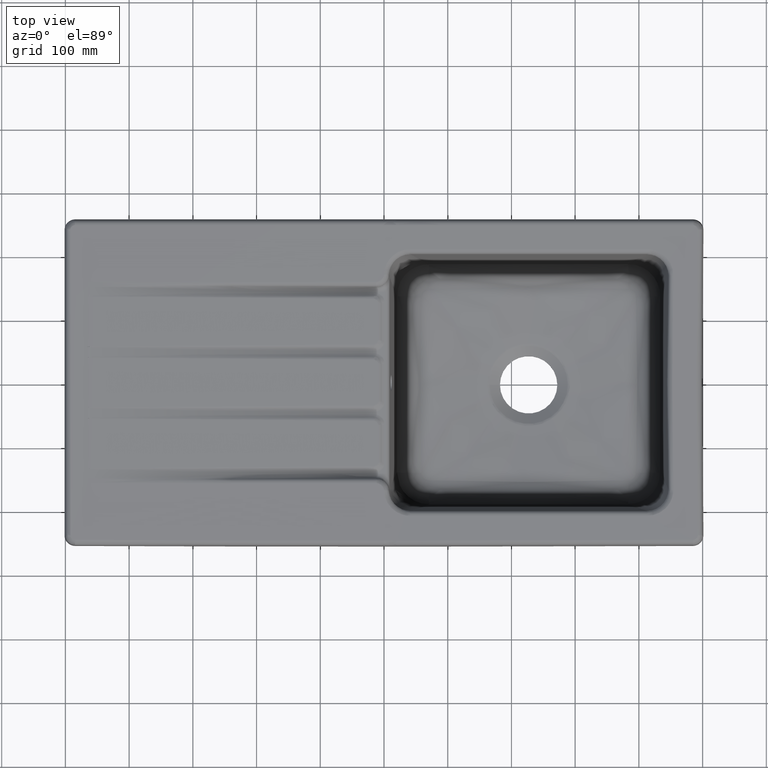
[diagram: clean part render]
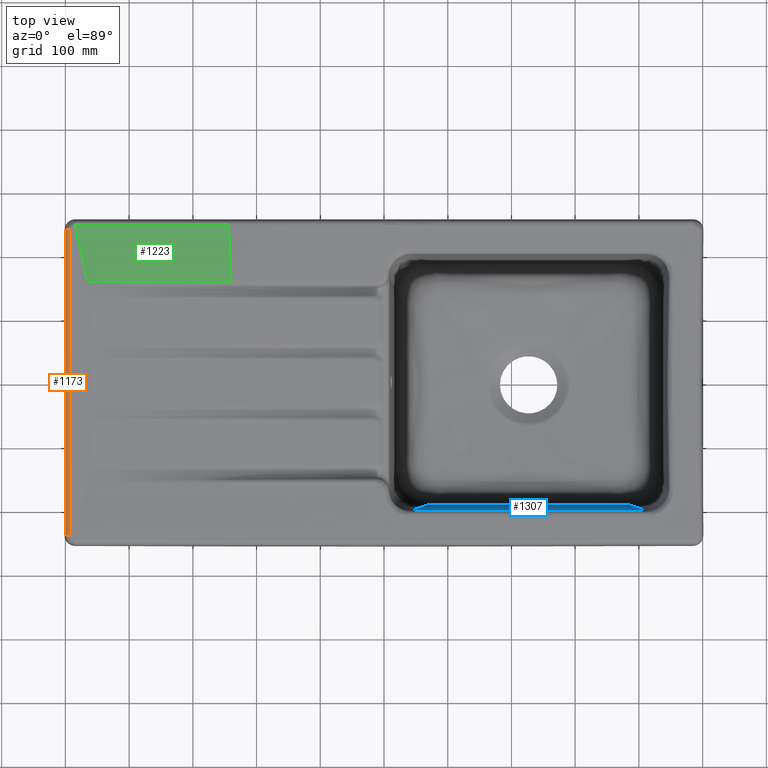
[diagram: same view with three faces highlighted in distinct colors, each labeled with its STEP entity id]
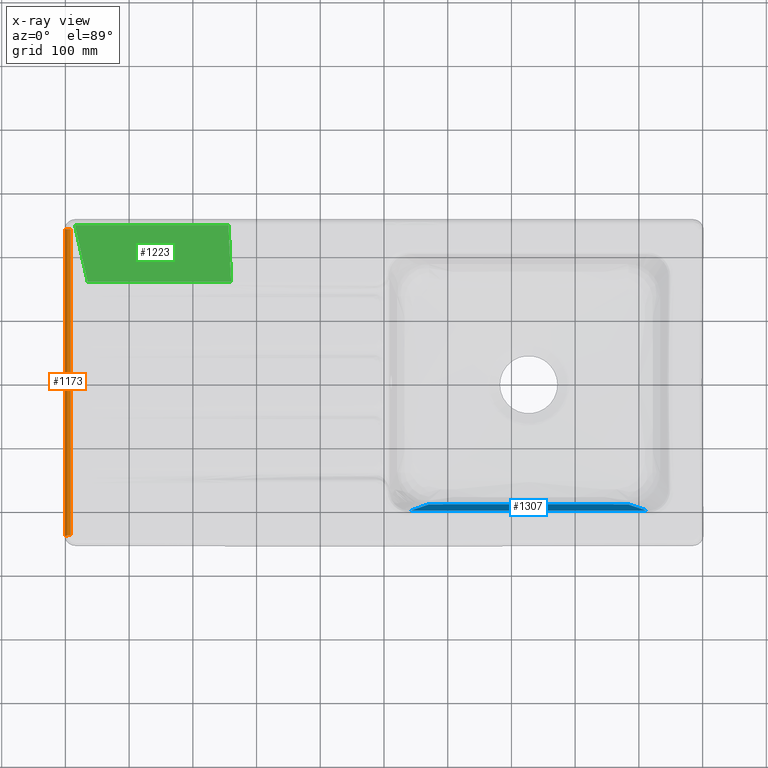
[diagram: x-ray of the same camera — body ghosted, the three highlighted faces saturated]
A machine part, top view with three faces highlighted in distinct colors.
The next image is the same camera in x-ray (body ghosted, the three faces saturated) — at least one of them is partly hidden behind the body in this view.
Their STEP definitions:

[orange] entity #1173 — the highlighted face is a freeform B-spline surface patch.
#108=(
BOUNDED_SURFACE()
B_SPLINE_SURFACE(2,3,((#10920,#10921,#10922,#10923,#10924,#10925,#10926,
#10927,#10928,#10929,#10930,#10931,#10932,#10933,#10934,#10935,#10936),
(#10937,#10938,#10939,#10940,#10941,#10942,#10943,#10944,#10945,#10946,
#10947,#10948,#10949,#10950,#10951,#10952,#10953),(#10954,#10955,#10956,
#10957,#10958,#10959,#10960,#10961,#10962,#10963,#10964,#10965,#10966,#10967,
#10968,#10969,#10970)),.UNSPECIFIED.,.F.,.F.,.F.)
B_SPLINE_SURFACE_WITH_KNOTS((3,3),(4,1,1,1,1,1,1,1,1,1,1,1,1,1,4),(0.,1.),
(0.,0.00160216019844753,0.00977261658688623,0.0424544421406404,0.107818093248149,
0.238545395463167,0.369272697678184,0.499999999893201,0.630727302108218,
0.761454604323236,0.892181906538253,0.957545557645762,0.990227383199516,
0.998397839587954,1.),.UNSPECIFIED.)
GEOMETRIC_REPRESENTATION_ITEM()
RATIONAL_B_SPLINE_SURFACE(((1.,1.,1.,1.,1.,1.,1.,1.,1.,1.,1.,1.,1.,1.,1.,
1.,1.),(0.743144825477059,0.743144825477059,0.743144825477059,0.743144825477059,
0.743144825477059,0.743144825477059,0.743144825477059,0.743144825477059,
0.743144825477059,0.743144825477059,0.743144825477059,0.743144825477059,
0.743144825477059,0.743144825477059,0.743144825477059,0.743144825477059,
0.743144825477059),(1.,1.,1.,1.,1.,1.,1.,1.,1.,1.,1.,1.,1.,1.,1.,1.,1.)))
REPRESENTATION_ITEM('')
SURFACE()
);
#555=CIRCLE('',#6814,8.00817599999979);
#556=CIRCLE('',#6815,8.00817600000002);
#1173=ADVANCED_FACE('',(#1704),#108,.F.);
#1704=FACE_OUTER_BOUND('',#2146,.T.);
#2146=EDGE_LOOP('',(#2793,#2794,#2795,#2796));
#2793=ORIENTED_EDGE('',*,*,#5392,.T.);
#2794=ORIENTED_EDGE('',*,*,#5272,.T.);
#2795=ORIENTED_EDGE('',*,*,#5394,.F.);
#2796=ORIENTED_EDGE('',*,*,#5395,.F.);
#4673=VERTEX_POINT('',#9586);
#4675=VERTEX_POINT('',#9624);
#4756=VERTEX_POINT('',#10872);
#4757=VERTEX_POINT('',#10902);
#5272=EDGE_CURVE('',#4675,#4673,#6291,.T.);
#5392=EDGE_CURVE('',#4756,#4675,#555,.T.);
#5394=EDGE_CURVE('',#4757,#4673,#556,.T.);
#5395=EDGE_CURVE('',#4756,#4757,#6356,.T.);
#6291=B_SPLINE_CURVE_WITH_KNOTS('',3,(#9642,#9643,#9644,#9645,#9646,#9647,
#9648,#9649,#9650,#9651,#9652,#9653,#9654,#9655,#9656,#9657,#9658),
 .UNSPECIFIED.,.F.,.F.,(4,1,1,1,1,1,1,1,1,1,1,1,1,1,4),(0.,0.00160216019844753,
0.00977261658688623,0.0424544421406404,0.107818093248149,0.238545395463167,
0.369272697678184,0.499999999893201,0.630727302108218,0.761454604323236,
0.892181906538253,0.957545557645762,0.990227383199516,0.998397839587954,
1.),.UNSPECIFIED.);
#6356=B_SPLINE_CURVE_WITH_KNOTS('',3,(#10903,#10904,#10905,#10906,#10907,
#10908,#10909,#10910,#10911,#10912,#10913,#10914,#10915,#10916,#10917,#10918,
#10919),.UNSPECIFIED.,.F.,.F.,(4,1,1,1,1,1,1,1,1,1,1,1,1,1,4),(0.,0.00160216019841838,
0.00977261658685745,0.0424544421406137,0.107818093248126,0.238545395463151,
0.369272697678176,0.499999999893201,0.630727302108226,0.761454604323252,
0.892181906538277,0.957545557645789,0.990227383199545,0.998397839587984,
1.),.UNSPECIFIED.);
#6814=AXIS2_PLACEMENT_3D('',#10871,#7316,#7317);
#6815=AXIS2_PLACEMENT_3D('',#10901,#7318,#7319);
#7316=DIRECTION('',(-0.022962364639938,-0.999736330144175,-4.63534793305253E-15));
#7317=DIRECTION('',(0.999736330144173,-0.0229623646399367,0.));
#7318=DIRECTION('',(0.0229624005290624,-0.999736329319858,3.50709759131329E-15));
#7319=DIRECTION('',(0.999736329319855,0.0229624005290614,0.));
#9586=CARTESIAN_POINT('',(-499.956049081241,-240.182738168329,-6.67153046231897));
#9624=CARTESIAN_POINT('',(-499.956049117871,240.182737883409,-6.67153046231899));
#9642=CARTESIAN_POINT('',(-499.956049117871,240.182737883409,-6.67153046231894));
#9643=CARTESIAN_POINT('',(-499.964143957086,239.830304456955,-6.67153046231894));
#9644=CARTESIAN_POINT('',(-499.962298082925,238.172559966568,-6.67153046231894));
#9645=CARTESIAN_POINT('',(-499.967396900279,231.392490705848,-6.67153046231894));
#9646=CARTESIAN_POINT('',(-499.961842265716,214.385278786583,-6.67153046231894));
#9647=CARTESIAN_POINT('',(-499.965956066208,177.790736822504,-6.67153046231894));
#9648=CARTESIAN_POINT('',(-499.963761953997,125.495847935144,-6.67153046231894));
#9649=CARTESIAN_POINT('',(-499.964310476259,62.7485325938123,-6.67153046231894));
#9650=CARTESIAN_POINT('',(-499.964310476259,4.82489213027293E-8,-6.67153046231894));
#9651=CARTESIAN_POINT('',(-499.964310476259,-62.7485324967693,-6.67153046231894));
#9652=CARTESIAN_POINT('',(-499.963761962587,-125.495847842994,-6.67153046231894));
#9653=CARTESIAN_POINT('',(-499.965956040437,-177.790736714781,-6.67153046231894));
#9654=CARTESIAN_POINT('',(-499.961842304366,-214.385278713687,-6.67153046231894));
#9655=CARTESIAN_POINT('',(-499.96739685193,-231.392490570001,-6.67153046231894));
#9656=CARTESIAN_POINT('',(-499.962298114314,-238.172559996826,-6.67153046231894));
#9657=CARTESIAN_POINT('',(-499.964143934105,-239.830304698717,-6.67153046231894));
#9658=CARTESIAN_POINT('',(-499.956049081241,-240.182738168329,-6.67153046231894));
#10871=CARTESIAN_POINT('',(-491.993842742607,239.999858577522,-7.50861328030383));
#10872=CARTESIAN_POINT('',(-491.993840117298,239.999858517223,0.499781358511798));
#10901=CARTESIAN_POINT('',(-491.993842712542,-239.99985857661,-7.50861328030395));
#10902=CARTESIAN_POINT('',(-491.993840086762,-239.999858516301,0.499781358513879));
#10903=CARTESIAN_POINT('',(-491.993838590212,239.999858482149,0.500000000000088));
#10904=CARTESIAN_POINT('',(-491.999731650023,239.743286213536,0.500000000000088));
#10905=CARTESIAN_POINT('',(-491.997984272115,238.173999336044,0.500000000000088));
#10906=CARTESIAN_POINT('',(-492.003085445942,231.39079659528,0.500000000000088));
#10907=CARTESIAN_POINT('',(-491.997531643255,214.386131720297,0.500000000000088));
#10908=CARTESIAN_POINT('',(-492.001645571172,177.790456243236,0.500000000000088));
#10909=CARTESIAN_POINT('',(-491.999451476283,125.495980201514,0.500000000000088));
#10910=CARTESIAN_POINT('',(-492.000000000005,62.7484977827526,0.500000000000088));
#10911=CARTESIAN_POINT('',(-492.000000000005,4.82489177500241E-8,0.500000000000088));
#10912=CARTESIAN_POINT('',(-492.000000000005,-62.7484976862548,0.500000000000088));
#10913=CARTESIAN_POINT('',(-491.999451484872,-125.495980107293,0.500000000000088));
#10914=CARTESIAN_POINT('',(-492.001645545402,-177.790456139907,0.500000000000088));
#10915=CARTESIAN_POINT('',(-491.99753168191,-214.386131634047,0.500000000000088));
#10916=CARTESIAN_POINT('',(-492.003085397624,-231.390796485974,0.500000000000088));
#10917=CARTESIAN_POINT('',(-491.997984303656,-238.173999282037,0.500000000000088));
#10918=CARTESIAN_POINT('',(-491.999731629896,-239.743286181169,0.500000000000088));
#10919=CARTESIAN_POINT('',(-491.993838560147,-239.999858481237,0.500000000000088));
#10920=CARTESIAN_POINT('',(-499.956049117871,240.182737883409,-6.67153046231894));
#10921=CARTESIAN_POINT('',(-499.964143957086,239.830304456955,-6.67153046231894));
#10922=CARTESIAN_POINT('',(-499.962298082925,238.172559966568,-6.67153046231894));
#10923=CARTESIAN_POINT('',(-499.967396900279,231.392490705848,-6.67153046231894));
#10924=CARTESIAN_POINT('',(-499.961842265716,214.385278786583,-6.67153046231894));
#10925=CARTESIAN_POINT('',(-499.965956066208,177.790736822504,-6.67153046231894));
#10926=CARTESIAN_POINT('',(-499.963761953997,125.495847935144,-6.67153046231894));
#10927=CARTESIAN_POINT('',(-499.964310476259,62.7485325938123,-6.67153046231894));
#10928=CARTESIAN_POINT('',(-499.964310476259,4.82489213027293E-8,-6.67153046231894));
#10929=CARTESIAN_POINT('',(-499.964310476259,-62.7485324967693,-6.67153046231894));
#10930=CARTESIAN_POINT('',(-499.963761962587,-125.495847842994,-6.67153046231894));
#10931=CARTESIAN_POINT('',(-499.965956040437,-177.790736714781,-6.67153046231894));
#10932=CARTESIAN_POINT('',(-499.961842304366,-214.385278713687,-6.67153046231894));
#10933=CARTESIAN_POINT('',(-499.96739685193,-231.392490570001,-6.67153046231894));
#10934=CARTESIAN_POINT('',(-499.962298114314,-238.172559996826,-6.67153046231894));
#10935=CARTESIAN_POINT('',(-499.964143934105,-239.830304698717,-6.67153046231894));
#10936=CARTESIAN_POINT('',(-499.956049081241,-240.182738168329,-6.67153046231894));
#10937=CARTESIAN_POINT('',(-499.202535094478,240.165430856302,0.499563160731398));
#10938=CARTESIAN_POINT('',(-499.210421565469,239.822069373684,0.499563160731398));
#10939=CARTESIAN_POINT('',(-499.208585012628,238.172696183147,0.499563160731398));
#10940=CARTESIAN_POINT('',(-499.213684052991,231.392330381516,0.499563160731398));
#10941=CARTESIAN_POINT('',(-499.208129497152,214.38535950506,0.499563160731398));
#10942=CARTESIAN_POINT('',(-499.212243309703,177.790710269524,0.499563160731398));
#10943=CARTESIAN_POINT('',(-499.210049199132,125.495860452341,0.499563160731398));
#10944=CARTESIAN_POINT('',(-499.210597721532,62.7485292994225,0.499563160731398));
#10945=CARTESIAN_POINT('',(-499.210597721532,4.82489213027293E-8,0.499563160731398));
#10946=CARTESIAN_POINT('',(-499.210597721532,-62.7485292024312,0.499563160731398));
#10947=CARTESIAN_POINT('',(-499.210049207722,-125.495860359995,0.499563160731398));
#10948=CARTESIAN_POINT('',(-499.212243283933,-177.790710162216,0.499563160731398));
#10949=CARTESIAN_POINT('',(-499.208129535803,-214.3853594309,0.499563160731398));
#10950=CARTESIAN_POINT('',(-499.213684004644,-231.392330248181,0.499563160731398));
#10951=CARTESIAN_POINT('',(-499.208585044032,-238.172696205431,0.499563160731398));
#10952=CARTESIAN_POINT('',(-499.210421542759,-239.822069589504,0.499563160731398));
#10953=CARTESIAN_POINT('',(-499.202535058469,-240.165431114172,0.499563160731398));
#10954=CARTESIAN_POINT('',(-491.993842252917,239.999858566274,0.499562719695976));
#10955=CARTESIAN_POINT('',(-491.999735313741,239.743286253559,0.499562719695977));
#10956=CARTESIAN_POINT('',(-491.997987935788,238.173999335371,0.499562719695977));
#10957=CARTESIAN_POINT('',(-492.003089109614,231.390796596044,0.499562719695977));
#10958=CARTESIAN_POINT('',(-491.997535306926,214.386131719891,0.499562719695977));
#10959=CARTESIAN_POINT('',(-492.001649234842,177.790456243353,0.499562719695977));
#10960=CARTESIAN_POINT('',(-491.999455139954,125.495980201445,0.499562719695977));
#10961=CARTESIAN_POINT('',(-492.000003663676,62.7484977827645,0.499562719695977));
#10962=CARTESIAN_POINT('',(-492.000003663676,4.82489141973019E-8,0.499562719695977));
#10963=CARTESIAN_POINT('',(-492.000003663676,-62.7484976862667,0.499562719695977));
#10964=CARTESIAN_POINT('',(-491.999455148543,-125.495980107224,0.499562719695977));
#10965=CARTESIAN_POINT('',(-492.001649209073,-177.790456140024,0.499562719695977));
#10966=CARTESIAN_POINT('',(-491.997535345581,-214.38613163364,0.499562719695977));
#10967=CARTESIAN_POINT('',(-492.003089061295,-231.390796486738,0.499562719695977));
#10968=CARTESIAN_POINT('',(-491.997987967329,-238.173999281365,0.499562719695977));
#10969=CARTESIAN_POINT('',(-491.999735293614,-239.743286221192,0.499562719695977));
#10970=CARTESIAN_POINT('',(-491.993842222852,-239.999858565363,0.499562719695977));

[blue] entity #1307 — the highlighted planar face has unit normal (-0, -0.9962, -0.0872).
#387=PLANE('',#6919);
#831=LINE('',#12992,#999);
#999=VECTOR('',#7437,1.);
#1307=ADVANCED_FACE('',(#1836),#387,.F.);
#1836=FACE_OUTER_BOUND('',#2282,.T.);
#2282=EDGE_LOOP('',(#3343,#3344,#3345,#3346));
#3343=ORIENTED_EDGE('',*,*,#5535,.T.);
#3344=ORIENTED_EDGE('',*,*,#5541,.T.);
#3345=ORIENTED_EDGE('',*,*,#5666,.F.);
#3346=ORIENTED_EDGE('',*,*,#5537,.T.);
#4777=VERTEX_POINT('',#11295);
#4825=VERTEX_POINT('',#12957);
#4826=VERTEX_POINT('',#12991);
#4829=VERTEX_POINT('',#13062);
#5535=EDGE_CURVE('',#4777,#4825,#6436,.T.);
#5537=EDGE_CURVE('',#4826,#4777,#831,.T.);
#5541=EDGE_CURVE('',#4825,#4829,#6440,.T.);
#5666=EDGE_CURVE('',#4826,#4829,#6502,.T.);
#6436=B_SPLINE_CURVE_WITH_KNOTS('',3,(#12958,#12959,#12960,#12961,#12962,
#12963,#12964,#12965),.UNSPECIFIED.,.F.,.F.,(4,2,2,4),(0.,0.151517593064763,
0.852907961603614,1.),.UNSPECIFIED.);
#6440=B_SPLINE_CURVE_WITH_KNOTS('',3,(#13063,#13064,#13065,#13066,#13067,
#13068,#13069,#13070,#13071,#13072,#13073,#13074,#13075,#13076,#13077,#13078,
#13079,#13080,#13081,#13082,#13083,#13084,#13085,#13086,#13087,#13088,#13089,
#13090,#13091,#13092,#13093,#13094,#13095,#13096,#13097,#13098,#13099,#13100,
#13101,#13102,#13103,#13104,#13105,#13106,#13107,#13108,#13109,#13110,#13111,
#13112,#13113,#13114,#13115,#13116,#13117,#13118,#13119,#13120,#13121,#13122,
#13123,#13124,#13125,#13126,#13127,#13128,#13129,#13130,#13131,#13132,#13133,
#13134,#13135,#13136,#13137,#13138,#13139,#13140,#13141,#13142,#13143,#13144,
#13145,#13146,#13147,#13148,#13149,#13150,#13151,#13152,#13153,#13154,#13155,
#13156,#13157,#13158,#13159,#13160,#13161,#13162,#13163,#13164,#13165,#13166,
#13167,#13168,#13169,#13170,#13171,#13172,#13173,#13174,#13175,#13176,#13177,
#13178,#13179,#13180,#13181,#13182,#13183,#13184,#13185,#13186,#13187,#13188,
#13189,#13190,#13191,#13192),.UNSPECIFIED.,.F.,.F.,(4,1,1,2,2,1,1,1,2,2,
1,1,1,1,2,2,1,1,1,2,2,1,1,1,1,2,2,1,1,2,2,1,1,1,2,2,1,1,2,2,1,1,2,2,1,1,
2,2,1,1,1,2,2,1,1,1,1,2,2,1,1,1,1,2,2,1,1,1,1,2,2,1,1,1,1,2,2,1,1,1,2,2,
1,1,2,2,1,1,1,2,2,4),(0.,0.0156250000000011,0.0234375000000013,0.0273437500000015,
0.0312500000000016,0.0468750000000004,0.0546874999999998,0.0585937499999995,
0.0605468749999991,0.0624999999999987,0.0781249999999949,0.0859374999999927,
0.0898437499999916,0.0917968749999913,0.092773437499991,0.0937499999999905,
0.109374999999984,0.117187499999982,0.12109374999998,0.123046874999979,
0.124999999999979,0.187499999999965,0.218749999999957,0.234374999999954,
0.242187499999952,0.246093749999951,0.249999999999951,0.281249999999948,
0.296874999999946,0.304687499999945,0.312499999999944,0.343749999999939,
0.359374999999936,0.367187499999935,0.371093749999935,0.374999999999934,
0.437499999999932,0.468749999999931,0.484374999999931,0.499999999999931,
0.53124999999993,0.546874999999929,0.554687499999929,0.562499999999929,
0.593749999999928,0.609374999999928,0.617187499999927,0.624999999999927,
0.656249999999926,0.671874999999926,0.679687499999925,0.683593749999925,
0.687499999999925,0.718749999999925,0.734374999999924,0.742187499999924,
0.746093749999924,0.748046874999924,0.749999999999924,0.757812499999923,
0.761718749999923,0.763671874999923,0.764648437499923,0.765136718749923,
0.765624999999923,0.773437499999924,0.777343749999924,0.779296874999924,
0.780273437499924,0.780761718749925,0.781249999999925,0.79687499999993,
0.804687499999933,0.808593749999934,0.810546874999935,0.811523437499935,
0.812499999999935,0.82812499999994,0.835937499999943,0.839843749999944,
0.841796874999945,0.843749999999946,0.859374999999951,0.867187499999953,
0.871093749999955,0.874999999999956,0.906249999999967,0.921874999999972,
0.929687499999975,0.933593749999976,0.937499999999978,1.),.UNSPECIFIED.);
#6502=B_SPLINE_CURVE_WITH_KNOTS('',3,(#16265,#16266,#16267,#16268,#16269,
#16270,#16271,#16272),.UNSPECIFIED.,.F.,.F.,(4,2,2,4),(0.,0.151517593064763,
0.852907961603614,1.),.UNSPECIFIED.);
#6919=AXIS2_PLACEMENT_3D('',#16273,#7560,#7561);
#7437=DIRECTION('',(1.,-6.30808536718839E-17,3.06836990813488E-34));
#7560=DIRECTION('',(-6.2840811979032E-17,-0.996194698091746,-0.0871557427476584));
#7561=DIRECTION('',(0.,0.0871557427476584,-0.996194698091746));
#11295=CARTESIAN_POINT('',(412.642079819299,-201.361091807406,-7.30275405801779));
#12957=CARTESIAN_POINT('',(383.032417858623,-188.608872369877,-153.061289205255));
#12958=CARTESIAN_POINT('',(422.441526187146,-205.58149427654,40.9366669028934));
#12959=CARTESIAN_POINT('',(419.669542445754,-204.387662851027,27.2911112685956));
#12960=CARTESIAN_POINT('',(416.897558704364,-203.193831425514,13.6455556342978));
#12961=CARTESIAN_POINT('',(401.293779930912,-196.473632753946,-63.1666666666667));
#12962=CARTESIAN_POINT('',(388.461984898851,-190.947265507891,-126.333333333333));
#12963=CARTESIAN_POINT('',(372.939170753594,-184.2619364916,-202.746993650713));
#12964=CARTESIAN_POINT('',(370.248151640397,-183.102974721363,-215.993987301425));
#12965=CARTESIAN_POINT('',(367.5571325272,-181.944012951126,-229.240980952138));
#12991=CARTESIAN_POINT('',(41.3579201807008,-201.361091807406,-7.30275405801879));
#12992=CARTESIAN_POINT('',(39.8744250370272,-201.361091807406,-7.30275405801873));
#13062=CARTESIAN_POINT('',(70.9679940952255,-188.608694950564,-153.06331711728));
#13063=CARTESIAN_POINT('',(383.032417858622,-188.608872369877,-153.061289205255));
#13064=CARTESIAN_POINT('',(381.485405720849,-188.605591486091,-153.098789878536));
#13065=CARTESIAN_POINT('',(379.106294222161,-188.600765701805,-153.153948845322));
#13066=CARTESIAN_POINT('',(376.228125879307,-188.595302817579,-153.216389897751));
#13067=CARTESIAN_POINT('',(374.97265267643,-188.592997409505,-153.242740832616));
#13068=CARTESIAN_POINT('',(374.130787766843,-188.591468432572,-153.260217118932));
#13069=CARTESIAN_POINT('',(373.660456720279,-188.590624498252,-153.269863332344));
#13070=CARTESIAN_POINT('',(371.766166597645,-188.587258998556,-153.3083311699));
#13071=CARTESIAN_POINT('',(369.410692278968,-188.583233548596,-153.354342273479));
#13072=CARTESIAN_POINT('',(366.518568107028,-188.578560202244,-153.407758866716));
#13073=CARTESIAN_POINT('',(365.03648832102,-188.576229282051,-153.434401406434));
#13074=CARTESIAN_POINT('',(364.393593191294,-188.575231549036,-153.445805546977));
#13075=CARTESIAN_POINT('',(363.96328130957,-188.574566667645,-153.453405176058));
#13076=CARTESIAN_POINT('',(363.710530436083,-188.574178095783,-153.457846572758));
#13077=CARTESIAN_POINT('',(362.089327126218,-188.571695008359,-153.486228391886));
#13078=CARTESIAN_POINT('',(359.789592923414,-188.568271665299,-153.52535738211));
#13079=CARTESIAN_POINT('',(356.864842554922,-188.564080785364,-153.573259358967));
#13080=CARTESIAN_POINT('',(355.342035587703,-188.561936100471,-153.59777321946));
#13081=CARTESIAN_POINT('',(354.565524158351,-188.560851446794,-153.610170867723));
#13082=CARTESIAN_POINT('',(354.229496128827,-188.560383957097,-153.615514299411));
#13083=CARTESIAN_POINT('',(354.00475801649,-188.56007171105,-153.619083288061));
#13084=CARTESIAN_POINT('',(353.844666076171,-188.559849662682,-153.621621312518));
#13085=CARTESIAN_POINT('',(352.727335789157,-188.558301352781,-153.639318575666));
#13086=CARTESIAN_POINT('',(350.719684408394,-188.555557902793,-153.670676352524));
#13087=CARTESIAN_POINT('',(347.624497609871,-188.551381409885,-153.718413884898));
#13088=CARTESIAN_POINT('',(345.888672497035,-188.549049213118,-153.745071015928));
#13089=CARTESIAN_POINT('',(345.104412081482,-188.547997425151,-153.757093007407));
#13090=CARTESIAN_POINT('',(344.572608389514,-188.547284616491,-153.765240447672));
#13091=CARTESIAN_POINT('',(344.245207771222,-188.54684606286,-153.770253138608));
#13092=CARTESIAN_POINT('',(337.056217300813,-188.537220621158,-153.880272440701));
#13093=CARTESIAN_POINT('',(326.951988739621,-188.524227818628,-154.028780853178));
#13094=CARTESIAN_POINT('',(315.780570572942,-188.510833268915,-154.18188125697));
#13095=CARTESIAN_POINT('',(310.349073611614,-188.504576924035,-154.253391606174));
#13096=CARTESIAN_POINT('',(307.671878161452,-188.501558984089,-154.287886817604));
#13097=CARTESIAN_POINT('',(306.532770046491,-188.500289202504,-154.302400487537));
#13098=CARTESIAN_POINT('',(305.775200495112,-188.499447930613,-154.312016269245));
#13099=CARTESIAN_POINT('',(305.44029177222,-188.499077257858,-154.316253078226));
#13100=CARTESIAN_POINT('',(301.661128406875,-188.494912729388,-154.363853856457));
#13101=CARTESIAN_POINT('',(296.703676023179,-188.489696881943,-154.423471265549));
#13102=CARTESIAN_POINT('',(291.062487756538,-188.484201226661,-154.486286892863));
#13103=CARTESIAN_POINT('',(288.67537268105,-188.481972267269,-154.511764015291));
#13104=CARTESIAN_POINT('',(287.090748639344,-188.480514365773,-154.528427905643));
#13105=CARTESIAN_POINT('',(286.351588441864,-188.47984384765,-154.536091962856));
#13106=CARTESIAN_POINT('',(282.175164285375,-188.476117466524,-154.578684694034));
#13107=CARTESIAN_POINT('',(277.231224660208,-188.472004730293,-154.625693484259));
#13108=CARTESIAN_POINT('',(271.5818914821,-188.467834649986,-154.673357720273));
#13109=CARTESIAN_POINT('',(268.786873989192,-188.465906637823,-154.695395000135));
#13110=CARTESIAN_POINT('',(267.59536272712,-188.465113995751,-154.704454940473));
#13111=CARTESIAN_POINT('',(266.80243374746,-188.464593045227,-154.710409432216));
#13112=CARTESIAN_POINT('',(266.436073406085,-188.464355135794,-154.713128749477));
#13113=CARTESIAN_POINT('',(259.220409029141,-188.459734114082,-154.765947269341));
#13114=CARTESIAN_POINT('',(249.250548909935,-188.454816787503,-154.822152569321));
#13115=CARTESIAN_POINT('',(237.998725748422,-188.451891226861,-154.85559188048));
#13116=CARTESIAN_POINT('',(233.25787588868,-188.45123984095,-154.863037255516));
#13117=CARTESIAN_POINT('',(230.115389330323,-188.450939456074,-154.866470670358));
#13118=CARTESIAN_POINT('',(228.585616170272,-188.450856540598,-154.867418398582));
#13119=CARTESIAN_POINT('',(223.828836041977,-188.45080655819,-154.867989700119));
#13120=CARTESIAN_POINT('',(219.012173465104,-188.451203568674,-154.863451849519));
#13121=CARTESIAN_POINT('',(213.287939507075,-188.452448985134,-154.849216674245));
#13122=CARTESIAN_POINT('',(210.812240463989,-188.45315035738,-154.84119995279));
#13123=CARTESIAN_POINT('',(209.156784231217,-188.453655188285,-154.835429709142));
#13124=CARTESIAN_POINT('',(208.283159648427,-188.453941325804,-154.832159142339));
#13125=CARTESIAN_POINT('',(204.336574868154,-188.455314163293,-154.81646753803));
#13126=CARTESIAN_POINT('',(199.530458986633,-188.457369333662,-154.792976833219));
#13127=CARTESIAN_POINT('',(193.800449037435,-188.460480621844,-154.757414646569));
#13128=CARTESIAN_POINT('',(191.318400183331,-188.461966943083,-154.740425917069));
#13129=CARTESIAN_POINT('',(189.657849768496,-188.462991804358,-154.728711699098));
#13130=CARTESIAN_POINT('',(188.772932341797,-188.463555022191,-154.722274089806));
#13131=CARTESIAN_POINT('',(184.850883560369,-188.466118092761,-154.69297805914));
#13132=CARTESIAN_POINT('',(180.059579849248,-188.469568273854,-154.653542308786));
#13133=CARTESIAN_POINT('',(174.321246466144,-188.474248853848,-154.600043034653));
#13134=CARTESIAN_POINT('',(171.414960011226,-188.476752986024,-154.571420672906));
#13135=CARTESIAN_POINT('',(170.161454438398,-188.477861294567,-154.558752648298));
#13136=CARTESIAN_POINT('',(169.324016448733,-188.478607968937,-154.550218121193));
#13137=CARTESIAN_POINT('',(168.872396559561,-188.479014228189,-154.545574556694));
#13138=CARTESIAN_POINT('',(165.376170950094,-188.482183291368,-154.509351998806));
#13139=CARTESIAN_POINT('',(160.607353077672,-188.486760614471,-154.457032956327));
#13140=CARTESIAN_POINT('',(154.856160705196,-188.492716659439,-154.388955050832));
#13141=CARTESIAN_POINT('',(151.933671638629,-188.495848640592,-154.353156342434));
#13142=CARTESIAN_POINT('',(150.460703885263,-188.497453120837,-154.334817049322));
#13143=CARTESIAN_POINT('',(149.826919872374,-188.498149003013,-154.32686307965));
#13144=CARTESIAN_POINT('',(149.40383894854,-188.498614757305,-154.32153948373));
#13145=CARTESIAN_POINT('',(149.141472019145,-188.498904486933,-154.318227858938));
#13146=CARTESIAN_POINT('',(148.333715182631,-188.499798356567,-154.308010882258));
#13147=CARTESIAN_POINT('',(147.239568307053,-188.501006384238,-154.294203062802));
#13148=CARTESIAN_POINT('',(145.744595943293,-188.502652672043,-154.27538590708));
#13149=CARTESIAN_POINT('',(144.942492842517,-188.503535046494,-154.265300320964));
#13150=CARTESIAN_POINT('',(144.527787062404,-188.503991041356,-154.260088275842));
#13151=CARTESIAN_POINT('',(144.347130107416,-188.50418964079,-154.257818273918));
#13152=CARTESIAN_POINT('',(144.226041936007,-188.504322745539,-154.256296879681));
#13153=CARTESIAN_POINT('',(144.199780216188,-188.504351614054,-154.255966911035));
#13154=CARTESIAN_POINT('',(142.571150403088,-188.506141610712,-154.235507155621));
#13155=CARTESIAN_POINT('',(140.812036350006,-188.508075080656,-154.21340749303));
#13156=CARTESIAN_POINT('',(139.704960684413,-188.509292023312,-154.199497774828));
#13157=CARTESIAN_POINT('',(139.387728867367,-188.509640801569,-154.195511221098));
#13158=CARTESIAN_POINT('',(139.288189462781,-188.509750267431,-154.194260020576));
#13159=CARTESIAN_POINT('',(139.258188968803,-188.509783269243,-154.19388280814));
#13160=CARTESIAN_POINT('',(139.241001806338,-188.509802178867,-154.193666670152));
#13161=CARTESIAN_POINT('',(139.288849441213,-188.509749504358,-154.194268742542));
#13162=CARTESIAN_POINT('',(137.281952888284,-188.511958747315,-154.169016979988));
#13163=CARTESIAN_POINT('',(134.603408049646,-188.514922678593,-154.135139090466));
#13164=CARTESIAN_POINT('',(131.899449556528,-188.517943950623,-154.100605793138));
#13165=CARTESIAN_POINT('',(130.652722931292,-188.51934542469,-154.084586871252));
#13166=CARTESIAN_POINT('',(130.055672774005,-188.520018871236,-154.076889342004));
#13167=CARTESIAN_POINT('',(129.805432668453,-188.520301643223,-154.073657243404));
#13168=CARTESIAN_POINT('',(129.639858938815,-188.520488858334,-154.071517364894));
#13169=CARTESIAN_POINT('',(129.586916219635,-188.520548737559,-154.070832942219));
#13170=CARTESIAN_POINT('',(127.704140730464,-188.52268030917,-154.046468967219));
#13171=CARTESIAN_POINT('',(125.156147126756,-188.525602942091,-154.013063120067));
#13172=CARTESIAN_POINT('',(122.376062089184,-188.528861052367,-153.975822749206));
#13173=CARTESIAN_POINT('',(121.034163112088,-188.530452200472,-153.957635843146));
#13174=CARTESIAN_POINT('',(120.469380023694,-188.531125998153,-153.949934300414));
#13175=CARTESIAN_POINT('',(120.095150514369,-188.53157339151,-153.944820570944));
#13176=CARTESIAN_POINT('',(119.939404324584,-188.531759901733,-153.942688749342));
#13177=CARTESIAN_POINT('',(118.00400386838,-188.534083481133,-153.916130115265));
#13178=CARTESIAN_POINT('',(115.494775409015,-188.537156537881,-153.881004915909));
#13179=CARTESIAN_POINT('',(112.692126800341,-188.540697934795,-153.840526563962));
#13180=CARTESIAN_POINT('',(111.517731238177,-188.542206282909,-153.823286066121));
#13181=CARTESIAN_POINT('',(110.740742986921,-188.543209760892,-153.81181626029));
#13182=CARTESIAN_POINT('',(110.410140844797,-188.543638723898,-153.806913190699));
#13183=CARTESIAN_POINT('',(106.472884530134,-188.548781178436,-153.748134666367));
#13184=CARTESIAN_POINT('',(101.410190477897,-188.555756416786,-153.668407327201));
#13185=CARTESIAN_POINT('',(95.8309308930839,-188.564101801385,-153.573019144742));
#13186=CARTESIAN_POINT('',(93.1231053030432,-188.568326395316,-153.524731815155));
#13187=CARTESIAN_POINT('',(91.9801380935328,-188.57014805735,-153.503910122826));
#13188=CARTESIAN_POINT('',(91.222055392067,-188.571364970213,-153.490000745162));
#13189=CARTESIAN_POINT('',(90.8974537452446,-188.571889178805,-153.484009013531));
#13190=CARTESIAN_POINT('',(83.6276094906097,-188.5837281748,-153.348688670097));
#13191=CARTESIAN_POINT('',(77.1270022397137,-188.59576462821,-153.211111378081));
#13192=CARTESIAN_POINT('',(70.9679940952255,-188.608694950564,-153.06331711728));
#16265=CARTESIAN_POINT('',(31.5584738128533,-205.58149427654,40.9366669028934));
#16266=CARTESIAN_POINT('',(34.3304575542446,-204.387662851027,27.2911112685956));
#16267=CARTESIAN_POINT('',(37.1024412956359,-203.193831425514,13.6455556342977));
#16268=CARTESIAN_POINT('',(52.7062200690876,-196.473632753946,-63.1666666666667));
#16269=CARTESIAN_POINT('',(65.5380151011479,-190.947265507891,-126.333333333333));
#16270=CARTESIAN_POINT('',(81.0608292464054,-184.2619364916,-202.746993650713));
#16271=CARTESIAN_POINT('',(83.7518483596024,-183.102974721363,-215.993987301425));
#16272=CARTESIAN_POINT('',(86.4428674727995,-181.944012951126,-229.240980952138));
#16273=CARTESIAN_POINT('',(6.9999999999996,-202.,0.));

[green] entity #1223 — the highlighted planar face has unit normal (0, -0.0056, 1).
#385=PLANE('',#6850);
#1223=ADVANCED_FACE('',(#1754),#385,.T.);
#1754=FACE_OUTER_BOUND('',#2196,.T.);
#2196=EDGE_LOOP('',(#2999,#3000,#3001,#3002));
#2999=ORIENTED_EDGE('',*,*,#5491,.F.);
#3000=ORIENTED_EDGE('',*,*,#5492,.F.);
#3001=ORIENTED_EDGE('',*,*,#5488,.T.);
#3002=ORIENTED_EDGE('',*,*,#5381,.T.);
#4754=VERTEX_POINT('',#10780);
#4755=VERTEX_POINT('',#10785);
#4802=VERTEX_POINT('',#12320);
#4804=VERTEX_POINT('',#12337);
#5381=EDGE_CURVE('',#4755,#4754,#6351,.T.);
#5488=EDGE_CURVE('',#4802,#4755,#6414,.T.);
#5491=EDGE_CURVE('',#4804,#4754,#6417,.T.);
#5492=EDGE_CURVE('',#4802,#4804,#6418,.T.);
#6351=B_SPLINE_CURVE_WITH_KNOTS('',3,(#10781,#10782,#10783,#10784),
 .UNSPECIFIED.,.F.,.F.,(4,4),(0.,1.),.UNSPECIFIED.);
#6414=B_SPLINE_CURVE_WITH_KNOTS('',1,(#12318,#12319),.UNSPECIFIED.,.F.,
 .F.,(2,2),(0.,1.),.UNSPECIFIED.);
#6417=B_SPLINE_CURVE_WITH_KNOTS('',3,(#12333,#12334,#12335,#12336),
 .UNSPECIFIED.,.F.,.F.,(4,4),(0.,1.),.UNSPECIFIED.);
#6418=B_SPLINE_CURVE_WITH_KNOTS('',3,(#12338,#12339,#12340,#12341,#12342,
#12343,#12344,#12345,#12346,#12347,#12348,#12349),.UNSPECIFIED.,.F.,.F.,
(4,1,1,1,2,1,1,1,4),(0.,0.246798274539967,0.493596549079934,0.740394823619901,
0.987193098159868,0.990394823619901,0.993596549079934,0.996798274539967,
1.),.UNSPECIFIED.);
#6850=AXIS2_PLACEMENT_3D('',#12350,#7396,#7397);
#7396=DIRECTION('',(0.,-0.00561788887380781,0.999984219537789));
#7397=DIRECTION('',(0.219248035490734,-0.97565375793377,-0.00548120088726837));
#10780=CARTESIAN_POINT('',(-485.,247.000000507541,0.49978135651567));
#10781=CARTESIAN_POINT('',(-244.075003744,246.999997543673,0.499999986200412));
#10782=CARTESIAN_POINT('',(-324.383335829333,246.999997543673,0.499999986200412));
#10783=CARTESIAN_POINT('',(-404.691667914667,246.999997543673,0.499999986200412));
#10784=CARTESIAN_POINT('',(-485.,246.999997543673,0.499999986200412));
#10785=CARTESIAN_POINT('',(-244.075003744,246.999999181345,0.499781357643169));
#12318=CARTESIAN_POINT('',(-239.958154124783,158.,0.));
#12319=CARTESIAN_POINT('',(-244.075003744,247.,0.5));
#12320=CARTESIAN_POINT('',(-239.958154124783,158.,0.));
#12333=CARTESIAN_POINT('',(-465.,158.,0.));
#12334=CARTESIAN_POINT('',(-471.666666666667,187.666666666667,0.166666666666667));
#12335=CARTESIAN_POINT('',(-478.333333333333,217.333333333333,0.333333333333333));
#12336=CARTESIAN_POINT('',(-485.,247.,0.5));
#12337=CARTESIAN_POINT('',(-465.,158.,0.));
#12338=CARTESIAN_POINT('',(-239.958154124783,158.,0.));
#12339=CARTESIAN_POINT('',(-258.471473353794,158.,0.));
#12340=CARTESIAN_POINT('',(-295.498111811817,158.,0.));
#12341=CARTESIAN_POINT('',(-351.038067195633,158.,0.));
#12342=CARTESIAN_POINT('',(-406.578017973013,158.,0.));
#12343=CARTESIAN_POINT('',(-443.604647218163,158.,0.));
#12344=CARTESIAN_POINT('',(-462.358134374432,158.,0.));
#12345=CARTESIAN_POINT('',(-462.838479441719,158.,0.));
#12346=CARTESIAN_POINT('',(-463.558990133037,158.,0.));
#12347=CARTESIAN_POINT('',(-464.279496218073,158.,0.));
#12348=CARTESIAN_POINT('',(-464.75983207269,158.,0.));
#12349=CARTESIAN_POINT('',(-465.,158.,0.));
#12350=CARTESIAN_POINT('',(-485.,247.,0.5));